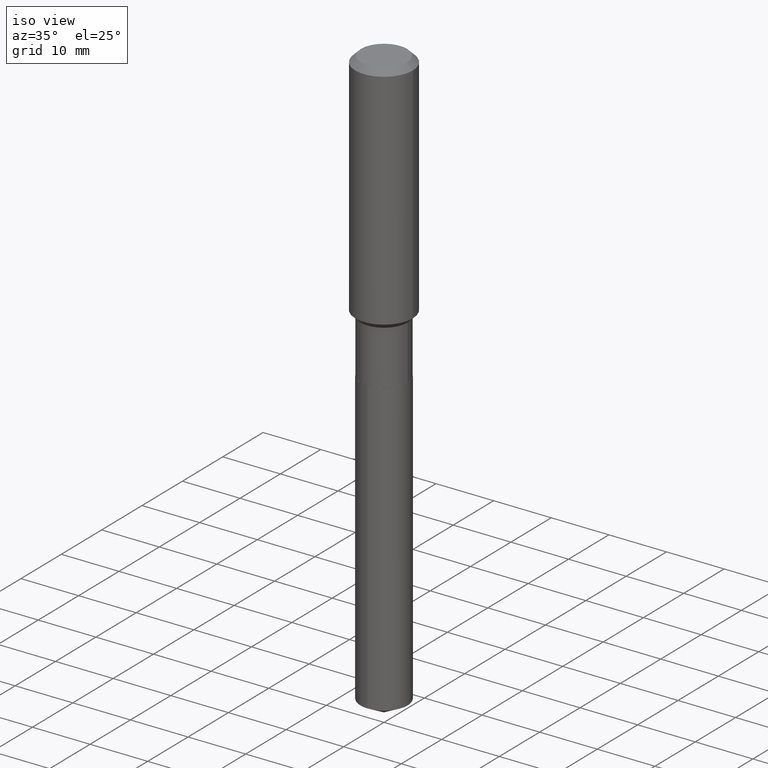
[diagram: clean part render]
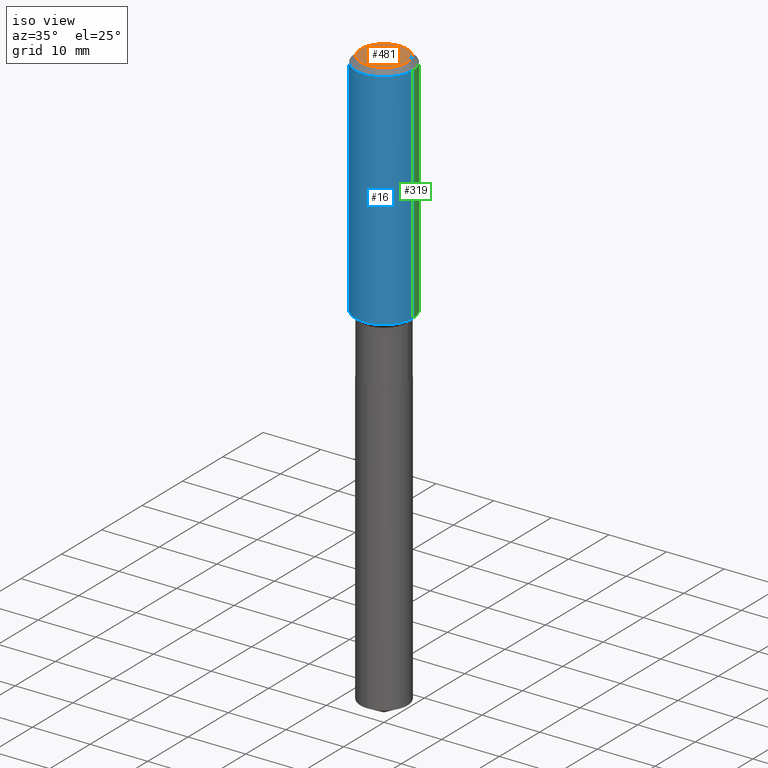
[diagram: same view with three faces highlighted in distinct colors, each labeled with its STEP entity id]
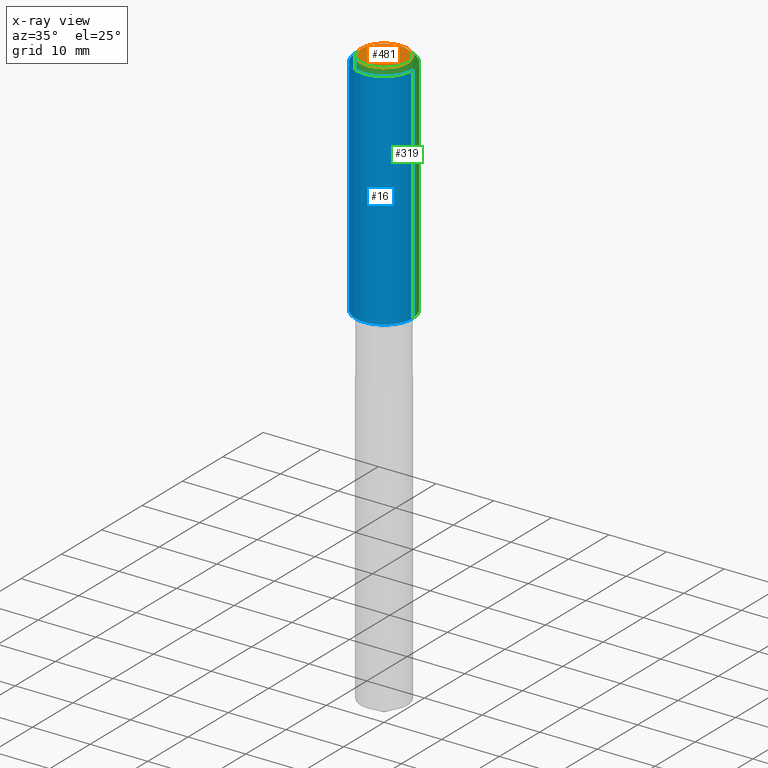
[diagram: x-ray of the same camera — body ghosted, the three highlighted faces saturated]
A machine part, iso view with three faces highlighted in distinct colors.
The next image is the same camera in x-ray (body ghosted, the three faces saturated) — at least one of them is partly hidden behind the body in this view.
Their STEP definitions:

[orange] entity #481 — the highlighted planar face has unit normal (0, -0, -1).
#2 = CIRCLE ( 'NONE', #460, 0.1574800000000000089 ) ;
#12 = ORIENTED_EDGE ( 'NONE', *, *, #445, .T. ) ;
#38 = DIRECTION ( 'NONE',  ( -2.445468806185136597E-29, 3.491481338843145583E-15, 1.000000000000000000 ) ) ;
#58 = FACE_OUTER_BOUND ( 'NONE', #424, .T. ) ;
#59 = VERTEX_POINT ( 'NONE', #103 ) ;
#61 = CIRCLE ( 'NONE', #101, 0.1574800000000000089 ) ;
#101 = AXIS2_PLACEMENT_3D ( 'NONE', #119, #239, #384 ) ;
#103 = CARTESIAN_POINT ( 'NONE',  ( 0.1574800000000000089, -1.284169937930321386E-15, 3.855188123724205385E-18 ) ) ;
#119 = CARTESIAN_POINT ( 'NONE',  ( -9.427742298522567634E-47, 1.346031739168368355E-32, 3.855188123715870730E-18 ) ) ;
#160 = ORIENTED_EDGE ( 'NONE', *, *, #274, .T. ) ;
#187 = VERTEX_POINT ( 'NONE', #297 ) ;
#219 = AXIS2_PLACEMENT_3D ( 'NONE', #272, #233, #315 ) ;
#233 = DIRECTION ( 'NONE',  ( 2.438088387897960049E-29, -3.491481338843145188E-15, -1.000000000000000000 ) ) ;
#239 = DIRECTION ( 'NONE',  ( -2.445468806185136597E-29, 3.491481338843145583E-15, 1.000000000000000000 ) ) ;
#272 = CARTESIAN_POINT ( 'NONE',  ( -4.713871149261283817E-47, 6.730158695841841775E-33, 1.927594061857935365E-18 ) ) ;
#274 = EDGE_CURVE ( 'NONE', #187, #59, #2, .T. ) ;
#279 = PLANE ( 'NONE',  #219 ) ;
#297 = CARTESIAN_POINT ( 'NONE',  ( -0.1574800000000000089, 1.168406772637159815E-15, 3.855188123707939751E-18 ) ) ;
#315 = DIRECTION ( 'NONE',  ( -1.000000000000000000, 6.982962677686265922E-15, -4.876176775795935793E-29 ) ) ;
#372 = DIRECTION ( 'NONE',  ( 1.000000000000000000, -6.982962677686265922E-15, 4.876223630392693006E-29 ) ) ;
#384 = DIRECTION ( 'NONE',  ( 1.000000000000000000, -6.982962677686265922E-15, 4.876223630392693006E-29 ) ) ;
#414 = CARTESIAN_POINT ( 'NONE',  ( -9.427742298522567634E-47, 1.346031739168368355E-32, 3.855188123715870730E-18 ) ) ;
#424 = EDGE_LOOP ( 'NONE', ( #160, #12 ) ) ;
#445 = EDGE_CURVE ( 'NONE', #59, #187, #61, .T. ) ;
#460 = AXIS2_PLACEMENT_3D ( 'NONE', #414, #38, #372 ) ;
#481 = ADVANCED_FACE ( 'NONE', ( #58 ), #279, .F. ) ;

[blue] entity #16 — the highlighted cylindrical surface (edge-blend (fillet) strip) has radius 5 mm, axis along (-0, 0, 1).
#4 = CARTESIAN_POINT ( 'NONE',  ( -0.1968500000000002192, -4.081700308171384908E-15, -1.569649999999999990 ) ) ;
#11 = CIRCLE ( 'NONE', #235, 0.1968500000000002192 ) ;
#13 = DIRECTION ( 'NONE',  ( 1.000000000000000000, -6.982962677686265922E-15, 0.000000000000000000 ) ) ;
#16 = ADVANCED_FACE ( 'NONE', ( #287 ), #71, .T. ) ;
#17 = CARTESIAN_POINT ( 'NONE',  ( 9.627810689950950651E-31, -1.374596203102555808E-16, -0.03937000000000027283 ) ) ;
#21 = CIRCLE ( 'NONE', #245, 0.1968500000000000527 ) ;
#35 = LINE ( 'NONE', #252, #292 ) ;
#43 = VECTOR ( 'NONE', #362, 39.37007874015748143 ) ;
#55 = VERTEX_POINT ( 'NONE', #444 ) ;
#71 = CYLINDRICAL_SURFACE ( 'NONE', #154, 0.1968500000000001082 ) ;
#130 = ORIENTED_EDGE ( 'NONE', *, *, #149, .F. ) ;
#142 = DIRECTION ( 'NONE',  ( 1.000000000000000000, -6.982962677686266711E-15, 4.876176775795935793E-29 ) ) ;
#149 = EDGE_CURVE ( 'NONE', #198, #234, #436, .T. ) ;
#154 = AXIS2_PLACEMENT_3D ( 'NONE', #294, #256, #142 ) ;
#156 = EDGE_CURVE ( 'NONE', #55, #307, #35, .T. ) ;
#161 = DIRECTION ( 'NONE',  ( -2.445468806185136597E-29, 3.491481338843145583E-15, 1.000000000000000000 ) ) ;
#188 = CARTESIAN_POINT ( 'NONE',  ( -0.1968500000000000527, -1.410228276568941153E-15, -0.03937000000000027283 ) ) ;
#189 = CARTESIAN_POINT ( 'NONE',  ( 0.1968500000000000527, -1.512055823412797583E-15, -0.03937000000000027283 ) ) ;
#198 = VERTEX_POINT ( 'NONE', #4 ) ;
#200 = DIRECTION ( 'NONE',  ( 1.000000000000000000, -6.982962677686266711E-15, 0.000000000000000000 ) ) ;
#202 = DIRECTION ( 'NONE',  ( -2.445468806185136597E-29, 3.491481338843145583E-15, 1.000000000000000000 ) ) ;
#234 = VERTEX_POINT ( 'NONE', #188 ) ;
#235 = AXIS2_PLACEMENT_3D ( 'NONE', #386, #161, #13 ) ;
#245 = AXIS2_PLACEMENT_3D ( 'NONE', #17, #202, #200 ) ;
#252 = CARTESIAN_POINT ( 'NONE',  ( 0.1968500000000001082, -1.374596203102542397E-15, 9.598753983154305062E-30 ) ) ;
#256 = DIRECTION ( 'NONE',  ( -2.445468806185136597E-29, 3.491481338843145583E-15, 1.000000000000000000 ) ) ;
#287 = FACE_OUTER_BOUND ( 'NONE', #449, .T. ) ;
#292 = VECTOR ( 'NONE', #365, 39.37007874015748143 ) ;
#294 = CARTESIAN_POINT ( 'NONE',  ( 0.000000000000000000, 0.000000000000000000, 0.000000000000000000 ) ) ;
#307 = VERTEX_POINT ( 'NONE', #189 ) ;
#354 = EDGE_CURVE ( 'NONE', #234, #307, #21, .T. ) ;
#362 = DIRECTION ( 'NONE',  ( -2.445468806185136877E-29, 3.491481338843145188E-15, 1.000000000000000000 ) ) ;
#365 = DIRECTION ( 'NONE',  ( -2.445468806185136877E-29, 3.491481338843145188E-15, 1.000000000000000000 ) ) ;
#386 = CARTESIAN_POINT ( 'NONE',  ( 3.838530111628499967E-29, -5.480403683515143485E-15, -1.569649999999999990 ) ) ;
#390 = ORIENTED_EDGE ( 'NONE', *, *, #156, .T. ) ;
#393 = ORIENTED_EDGE ( 'NONE', *, *, #354, .F. ) ;
#400 = CARTESIAN_POINT ( 'NONE',  ( -0.1968500000000001082, 1.398703375343757985E-15, -9.682923725166787881E-30 ) ) ;
#430 = ORIENTED_EDGE ( 'NONE', *, *, #487, .T. ) ;
#436 = LINE ( 'NONE', #400, #43 ) ;
#444 = CARTESIAN_POINT ( 'NONE',  ( 0.1968500000000002192, -6.854999886617686671E-15, -1.569649999999999990 ) ) ;
#449 = EDGE_LOOP ( 'NONE', ( #130, #430, #390, #393 ) ) ;
#487 = EDGE_CURVE ( 'NONE', #198, #55, #11, .T. ) ;

[green] entity #319 — the highlighted cylindrical surface (edge-blend (fillet) strip) has radius 5 mm, axis along (-0, 0, 1).
#4 = CARTESIAN_POINT ( 'NONE',  ( -0.1968500000000002192, -4.081700308171384908E-15, -1.569649999999999990 ) ) ;
#35 = LINE ( 'NONE', #252, #292 ) ;
#43 = VECTOR ( 'NONE', #362, 39.37007874015748143 ) ;
#45 = DIRECTION ( 'NONE',  ( 1.000000000000000000, -6.982962677686266711E-15, 4.876176775795935793E-29 ) ) ;
#55 = VERTEX_POINT ( 'NONE', #444 ) ;
#72 = DIRECTION ( 'NONE',  ( -2.445468806185136597E-29, 3.491481338843145583E-15, 1.000000000000000000 ) ) ;
#77 = FACE_OUTER_BOUND ( 'NONE', #455, .T. ) ;
#88 = DIRECTION ( 'NONE',  ( 1.000000000000000000, -6.982962677686265922E-15, 0.000000000000000000 ) ) ;
#143 = AXIS2_PLACEMENT_3D ( 'NONE', #416, #378, #45 ) ;
#144 = CARTESIAN_POINT ( 'NONE',  ( 9.627810689950950651E-31, -1.374596203102555808E-16, -0.03937000000000027283 ) ) ;
#149 = EDGE_CURVE ( 'NONE', #198, #234, #436, .T. ) ;
#156 = EDGE_CURVE ( 'NONE', #55, #307, #35, .T. ) ;
#157 = CIRCLE ( 'NONE', #433, 0.1968500000000000527 ) ;
#165 = ORIENTED_EDGE ( 'NONE', *, *, #197, .F. ) ;
#188 = CARTESIAN_POINT ( 'NONE',  ( -0.1968500000000000527, -1.410228276568941153E-15, -0.03937000000000027283 ) ) ;
#189 = CARTESIAN_POINT ( 'NONE',  ( 0.1968500000000000527, -1.512055823412797583E-15, -0.03937000000000027283 ) ) ;
#197 = EDGE_CURVE ( 'NONE', #307, #234, #157, .T. ) ;
#198 = VERTEX_POINT ( 'NONE', #4 ) ;
#224 = CYLINDRICAL_SURFACE ( 'NONE', #143, 0.1968500000000001082 ) ;
#234 = VERTEX_POINT ( 'NONE', #188 ) ;
#252 = CARTESIAN_POINT ( 'NONE',  ( 0.1968500000000001082, -1.374596203102542397E-15, 9.598753983154305062E-30 ) ) ;
#278 = ORIENTED_EDGE ( 'NONE', *, *, #429, .T. ) ;
#292 = VECTOR ( 'NONE', #365, 39.37007874015748143 ) ;
#301 = DIRECTION ( 'NONE',  ( 1.000000000000000000, -6.982962677686266711E-15, 0.000000000000000000 ) ) ;
#303 = CARTESIAN_POINT ( 'NONE',  ( 3.838530111628499967E-29, -5.480403683515143485E-15, -1.569649999999999990 ) ) ;
#307 = VERTEX_POINT ( 'NONE', #189 ) ;
#312 = ORIENTED_EDGE ( 'NONE', *, *, #149, .T. ) ;
#319 = ADVANCED_FACE ( 'NONE', ( #77 ), #224, .T. ) ;
#323 = CIRCLE ( 'NONE', #442, 0.1968500000000002192 ) ;
#335 = ORIENTED_EDGE ( 'NONE', *, *, #156, .F. ) ;
#362 = DIRECTION ( 'NONE',  ( -2.445468806185136877E-29, 3.491481338843145188E-15, 1.000000000000000000 ) ) ;
#365 = DIRECTION ( 'NONE',  ( -2.445468806185136877E-29, 3.491481338843145188E-15, 1.000000000000000000 ) ) ;
#378 = DIRECTION ( 'NONE',  ( -2.445468806185136597E-29, 3.491481338843145583E-15, 1.000000000000000000 ) ) ;
#400 = CARTESIAN_POINT ( 'NONE',  ( -0.1968500000000001082, 1.398703375343757985E-15, -9.682923725166787881E-30 ) ) ;
#416 = CARTESIAN_POINT ( 'NONE',  ( 0.000000000000000000, 0.000000000000000000, 0.000000000000000000 ) ) ;
#422 = DIRECTION ( 'NONE',  ( -2.445468806185136597E-29, 3.491481338843145583E-15, 1.000000000000000000 ) ) ;
#429 = EDGE_CURVE ( 'NONE', #55, #198, #323, .T. ) ;
#433 = AXIS2_PLACEMENT_3D ( 'NONE', #144, #72, #301 ) ;
#436 = LINE ( 'NONE', #400, #43 ) ;
#442 = AXIS2_PLACEMENT_3D ( 'NONE', #303, #422, #88 ) ;
#444 = CARTESIAN_POINT ( 'NONE',  ( 0.1968500000000002192, -6.854999886617686671E-15, -1.569649999999999990 ) ) ;
#455 = EDGE_LOOP ( 'NONE', ( #278, #312, #165, #335 ) ) ;